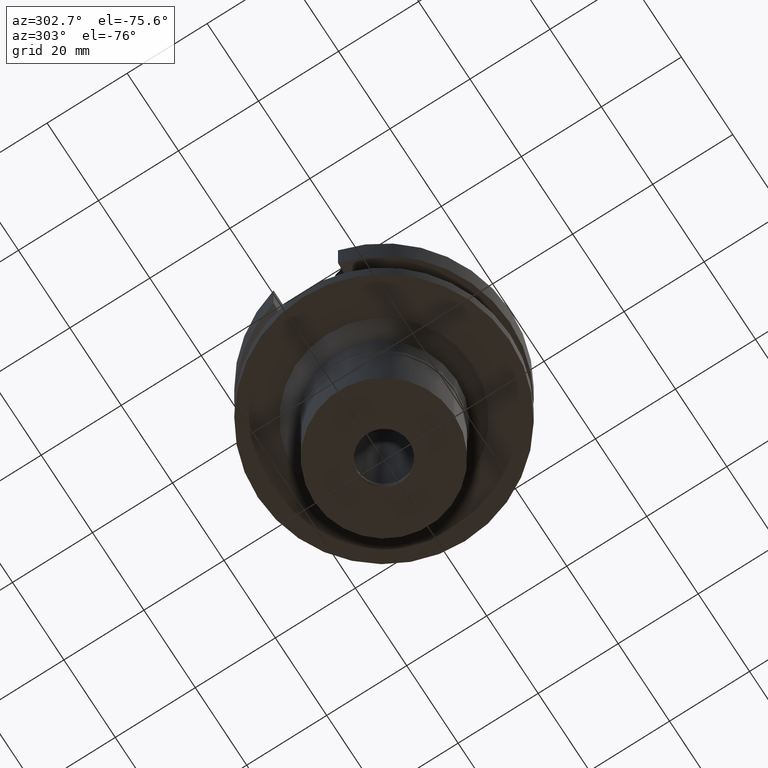
[diagram: clean part render]
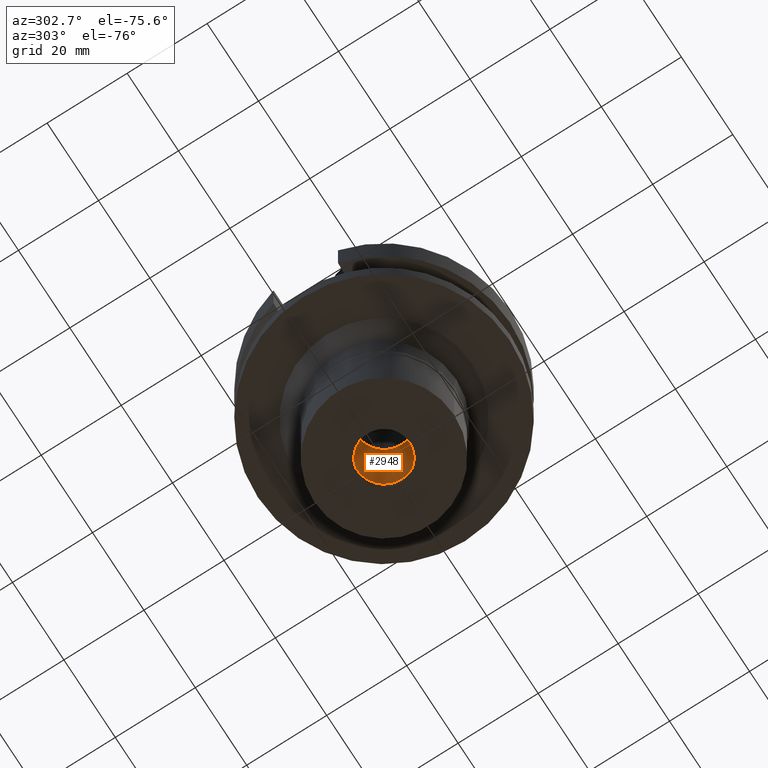
[diagram: same view with one face highlighted and labeled with its STEP entity id]
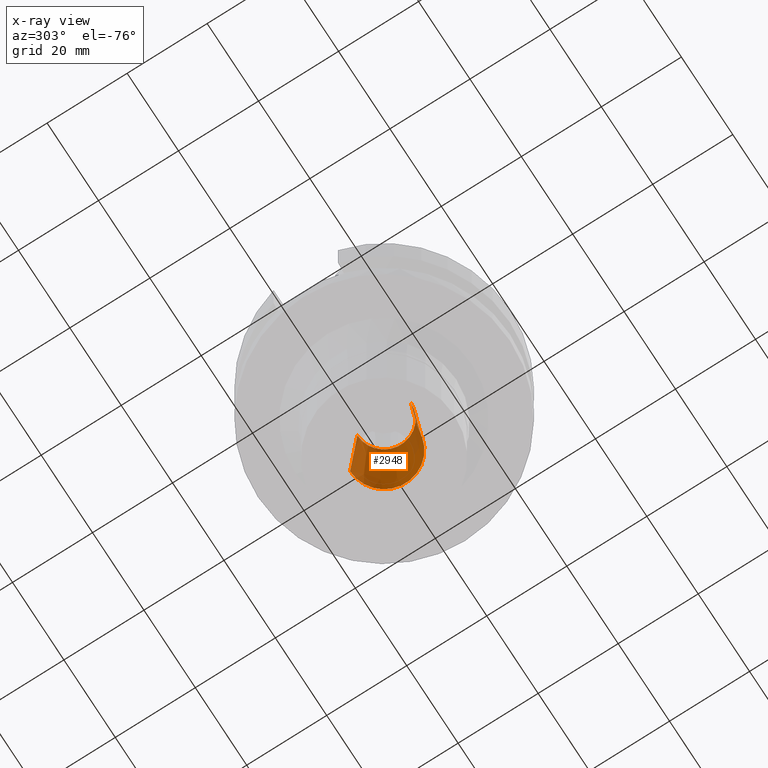
[diagram: x-ray of the same camera — body ghosted, the highlighted face saturated]
A machine part, auxiliary view. The second image highlights one B-rep face of the part: STEP entity #2948.
The next image is the same camera in x-ray: the body ghosted, the highlighted face saturated — about 9% of this face is hidden behind the body in this view.
In plain terms, the highlighted conical surface has half-angle 4 deg.
Its self-contained STEP definition (entity closure, byte-faithful):
#73 = CARTESIAN_POINT ( 'NONE',  ( 0.0000000000000000000, 8.500000000000000000, -53.29999999999999716 ) ) ;
#217 = EDGE_CURVE ( 'NONE', #2584, #2800, #2425, .T. ) ;
#279 = CARTESIAN_POINT ( 'NONE',  ( 0.0000000000000000000, 8.500000000000000000, -53.29999999999999716 ) ) ;
#303 = VERTEX_POINT ( 'NONE', #575 ) ;
#393 = CARTESIAN_POINT ( 'NONE',  ( 0.0000000000000000000, -8.500000000000000000, -53.29999999999999716 ) ) ;
#418 = DIRECTION ( 'NONE',  ( 0.0000000000000000000, 0.0000000000000000000, -1.000000000000000000 ) ) ;
#473 = FACE_OUTER_BOUND ( 'NONE', #3006, .T. ) ;
#575 = CARTESIAN_POINT ( 'NONE',  ( 0.0000000000000000000, -6.649999999999999467, -26.84376742507999936 ) ) ;
#612 = CONICAL_SURFACE ( 'NONE', #2545, 7.575000000000000178, 0.06981317007975955391 ) ;
#693 = CARTESIAN_POINT ( 'NONE',  ( 0.0000000000000000000, 0.0000000000000000000, -40.07188371253999293 ) ) ;
#708 = VECTOR ( 'NONE', #1023, 1000.000000000000000 ) ;
#723 = EDGE_CURVE ( 'NONE', #2584, #1145, #1910, .T. ) ;
#816 = VECTOR ( 'NONE', #2745, 1000.000000000000000 ) ;
#904 = DIRECTION ( 'NONE',  ( 0.0000000000000000000, 1.000000000000000000, 0.0000000000000000000 ) ) ;
#1023 = DIRECTION ( 'NONE',  ( 0.0000000000000000000, -0.06975647374412173585, 0.9975640502598245307 ) ) ;
#1145 = VERTEX_POINT ( 'NONE', #2244 ) ;
#1162 = CARTESIAN_POINT ( 'NONE',  ( 0.0000000000000000000, 0.0000000000000000000, -26.84376742507999936 ) ) ;
#1168 = DIRECTION ( 'NONE',  ( 0.0000000000000000000, -1.000000000000000000, 0.0000000000000000000 ) ) ;
#1292 = ORIENTED_EDGE ( 'NONE', *, *, #723, .T. ) ;
#1357 = AXIS2_PLACEMENT_3D ( 'NONE', #2375, #1939, #2797 ) ;
#1765 = EDGE_CURVE ( 'NONE', #2800, #303, #2879, .T. ) ;
#1769 = ORIENTED_EDGE ( 'NONE', *, *, #2731, .T. ) ;
#1794 = LINE ( 'NONE', #393, #816 ) ;
#1910 = CIRCLE ( 'NONE', #1357, 8.500000000000000000 ) ;
#1939 = DIRECTION ( 'NONE',  ( 0.0000000000000000000, 0.0000000000000000000, -1.000000000000000000 ) ) ;
#2006 = AXIS2_PLACEMENT_3D ( 'NONE', #1162, #418, #904 ) ;
#2244 = CARTESIAN_POINT ( 'NONE',  ( 0.0000000000000000000, -8.500000000000000000, -53.29999999999999716 ) ) ;
#2375 = CARTESIAN_POINT ( 'NONE',  ( 0.0000000000000000000, 0.0000000000000000000, -53.29999999999999716 ) ) ;
#2425 = LINE ( 'NONE', #73, #708 ) ;
#2434 = ORIENTED_EDGE ( 'NONE', *, *, #1765, .F. ) ;
#2545 = AXIS2_PLACEMENT_3D ( 'NONE', #693, #2566, #1168 ) ;
#2566 = DIRECTION ( 'NONE',  ( 0.0000000000000000000, 0.0000000000000000000, -1.000000000000000000 ) ) ;
#2584 = VERTEX_POINT ( 'NONE', #279 ) ;
#2731 = EDGE_CURVE ( 'NONE', #1145, #303, #1794, .T. ) ;
#2745 = DIRECTION ( 'NONE',  ( 0.0000000000000000000, 0.06975647374412173585, 0.9975640502598245307 ) ) ;
#2797 = DIRECTION ( 'NONE',  ( 0.0000000000000000000, 1.000000000000000000, 0.0000000000000000000 ) ) ;
#2800 = VERTEX_POINT ( 'NONE', #3004 ) ;
#2879 = CIRCLE ( 'NONE', #2006, 6.649999999999999467 ) ;
#2948 = ADVANCED_FACE ( 'NONE', ( #473 ), #612, .F. ) ;
#3004 = CARTESIAN_POINT ( 'NONE',  ( 0.0000000000000000000, 6.649999999999999467, -26.84376742507999936 ) ) ;
#3006 = EDGE_LOOP ( 'NONE', ( #1292, #1769, #2434, #3057 ) ) ;
#3057 = ORIENTED_EDGE ( 'NONE', *, *, #217, .F. ) ;